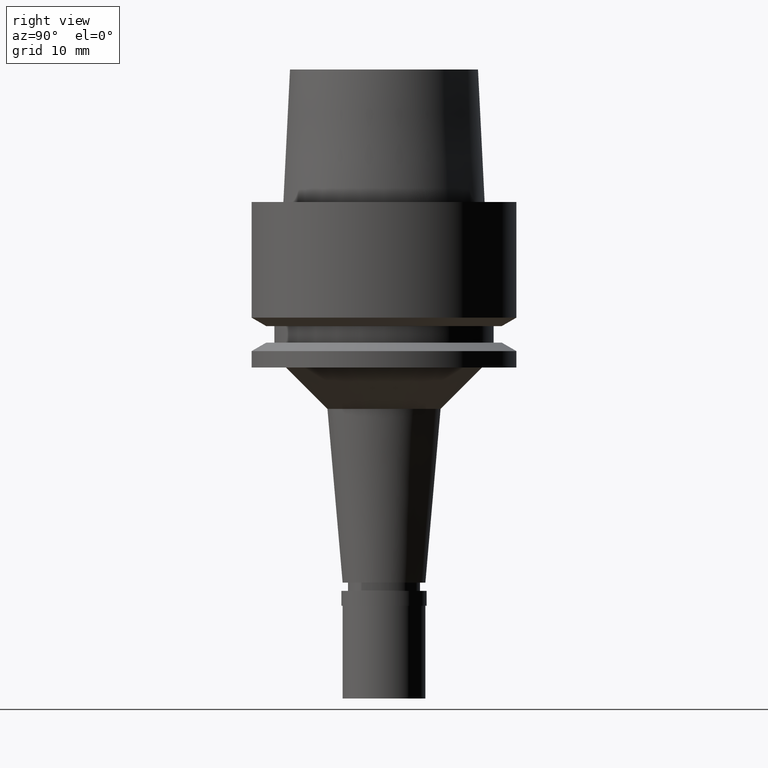
[diagram: clean part render]
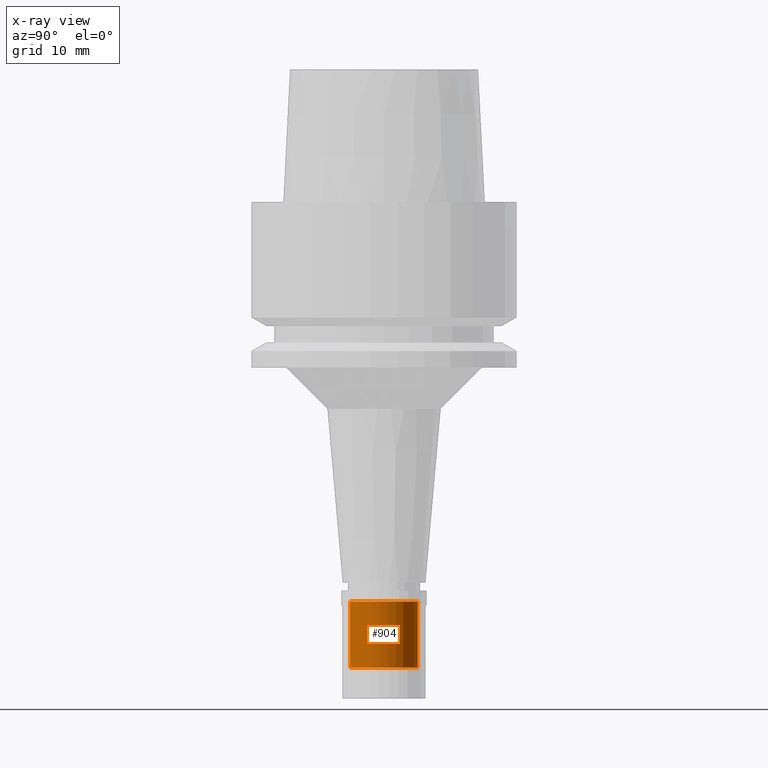
[diagram: x-ray — body ghosted, one internal face saturated and labeled with its STEP entity id]
A machine part, right view, then the same camera in x-ray: the body is ghosted and one INTERNAL B-rep face — a face not visible from any outside direction — is saturated and labeled: STEP entity #904.
In plain terms, the highlighted cylindrical surface (edge-blend (fillet) strip) has radius 4.1 mm, axis along (0, 0, -1).
Its self-contained STEP definition (entity closure, byte-faithful):
#45 = EDGE_CURVE ( 'NONE', #908, #800, #84, .T. ) ;
#65 = ORIENTED_EDGE ( 'NONE', *, *, #45, .T. ) ;
#76 = EDGE_CURVE ( 'NONE', #1042, #908, #1305, .T. ) ;
#84 = LINE ( 'NONE', #719, #172 ) ;
#97 = EDGE_CURVE ( 'NONE', #1042, #1507, #201, .T. ) ;
#123 = CARTESIAN_POINT ( 'NONE',  ( 0.0000000000000000000, 4.100000000000000533, -48.30000000000000426 ) ) ;
#128 = CARTESIAN_POINT ( 'NONE',  ( 0.0000000000000000000, 0.0000000000000000000, -48.30000000000000426 ) ) ;
#172 = VECTOR ( 'NONE', #934, 1000.000000000000000 ) ;
#180 = CYLINDRICAL_SURFACE ( 'NONE', #841, 4.100000000000000533 ) ;
#201 = LINE ( 'NONE', #1884, #2609 ) ;
#386 = DIRECTION ( 'NONE',  ( 0.0000000000000000000, -1.000000000000000000, 0.0000000000000000000 ) ) ;
#405 = DIRECTION ( 'NONE',  ( 0.0000000000000000000, -1.000000000000000000, 0.0000000000000000000 ) ) ;
#483 = EDGE_LOOP ( 'NONE', ( #1476, #65, #1955, #1236 ) ) ;
#586 = CARTESIAN_POINT ( 'NONE',  ( 0.0000000000000000000, 0.0000000000000000000, 19.61500000000000199 ) ) ;
#719 = CARTESIAN_POINT ( 'NONE',  ( 0.0000000000000000000, -4.100000000000000533, -48.30000000000000426 ) ) ;
#775 = DIRECTION ( 'NONE',  ( 0.0000000000000000000, 1.000000000000000000, 0.0000000000000000000 ) ) ;
#800 = VERTEX_POINT ( 'NONE', #2651 ) ;
#841 = AXIS2_PLACEMENT_3D ( 'NONE', #586, #1209, #386 ) ;
#904 = ADVANCED_FACE ( 'NONE', ( #1024 ), #180, .T. ) ;
#908 = VERTEX_POINT ( 'NONE', #1858 ) ;
#934 = DIRECTION ( 'NONE',  ( 0.0000000000000000000, 0.0000000000000000000, -1.000000000000000000 ) ) ;
#1024 = FACE_OUTER_BOUND ( 'NONE', #483, .T. ) ;
#1042 = VERTEX_POINT ( 'NONE', #123 ) ;
#1209 = DIRECTION ( 'NONE',  ( 0.0000000000000000000, 0.0000000000000000000, -1.000000000000000000 ) ) ;
#1236 = ORIENTED_EDGE ( 'NONE', *, *, #97, .F. ) ;
#1241 = AXIS2_PLACEMENT_3D ( 'NONE', #2089, #2260, #405 ) ;
#1305 = CIRCLE ( 'NONE', #1385, 4.100000000000000533 ) ;
#1361 = EDGE_CURVE ( 'NONE', #800, #1507, #2115, .T. ) ;
#1385 = AXIS2_PLACEMENT_3D ( 'NONE', #128, #2634, #775 ) ;
#1476 = ORIENTED_EDGE ( 'NONE', *, *, #76, .T. ) ;
#1507 = VERTEX_POINT ( 'NONE', #2477 ) ;
#1858 = CARTESIAN_POINT ( 'NONE',  ( 0.0000000000000000000, -4.100000000000000533, -48.30000000000000426 ) ) ;
#1884 = CARTESIAN_POINT ( 'NONE',  ( 0.0000000000000000000, 4.100000000000000533, -48.30000000000000426 ) ) ;
#1955 = ORIENTED_EDGE ( 'NONE', *, *, #1361, .T. ) ;
#2089 = CARTESIAN_POINT ( 'NONE',  ( 0.0000000000000000000, 0.0000000000000000000, -56.30000000000000426 ) ) ;
#2115 = CIRCLE ( 'NONE', #1241, 4.100000000000000533 ) ;
#2260 = DIRECTION ( 'NONE',  ( 0.0000000000000000000, 0.0000000000000000000, 1.000000000000000000 ) ) ;
#2477 = CARTESIAN_POINT ( 'NONE',  ( 0.0000000000000000000, 4.100000000000000533, -56.30000000000000426 ) ) ;
#2513 = DIRECTION ( 'NONE',  ( 0.0000000000000000000, 0.0000000000000000000, -1.000000000000000000 ) ) ;
#2609 = VECTOR ( 'NONE', #2513, 1000.000000000000000 ) ;
#2634 = DIRECTION ( 'NONE',  ( 0.0000000000000000000, 0.0000000000000000000, -1.000000000000000000 ) ) ;
#2651 = CARTESIAN_POINT ( 'NONE',  ( 0.0000000000000000000, -4.100000000000000533, -56.30000000000000426 ) ) ;